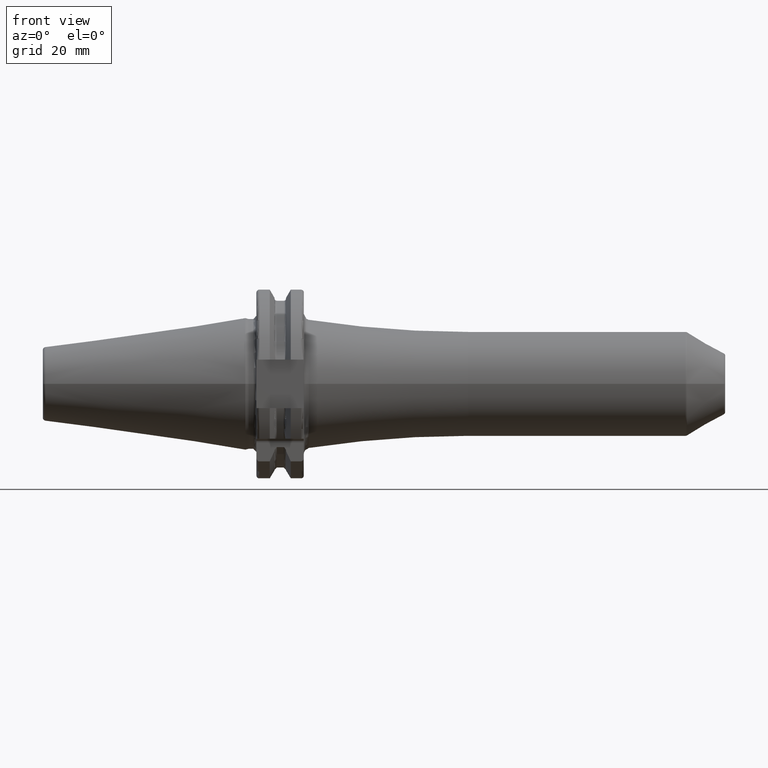
[diagram: clean part render]
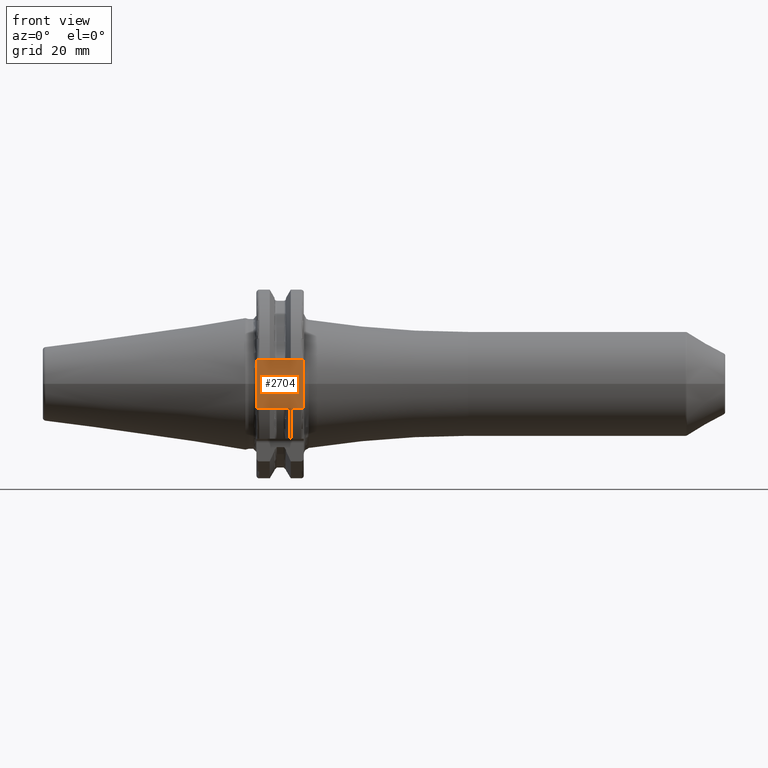
[diagram: same view with one face highlighted and labeled with its STEP entity id]
A machine part, front view. The second image highlights one B-rep face of the part: STEP entity #2704.
In plain terms, the highlighted planar face has unit normal (0, 1, 0).
Its self-contained STEP definition (entity closure, byte-faithful):
#151=DIRECTION('',(0.E0,0.E0,1.E0));
#152=VECTOR('',#151,1.62E1);
#153=CARTESIAN_POINT('',(1.905E1,-2.485E1,-8.1E0));
#154=LINE('',#153,#152);
#507=DIRECTION('',(-1.E0,0.E0,0.E0));
#508=VECTOR('',#507,1.585E1);
#509=CARTESIAN_POINT('',(1.905E1,-2.485E1,8.1E0));
#510=LINE('',#509,#508);
#732=DIRECTION('',(0.E0,0.E0,1.E0));
#733=VECTOR('',#732,1.62E1);
#734=CARTESIAN_POINT('',(3.2E0,-2.485E1,-8.1E0));
#735=LINE('',#734,#733);
#961=DIRECTION('',(-1.E0,0.E0,0.E0));
#962=VECTOR('',#961,1.585E1);
#963=CARTESIAN_POINT('',(1.905E1,-2.485E1,-8.1E0));
#964=LINE('',#963,#962);
#1533=CARTESIAN_POINT('',(1.905E1,-2.485E1,-8.1E0));
#1535=VERTEX_POINT('',#1533);
#1536=CARTESIAN_POINT('',(1.905E1,-2.485E1,8.1E0));
#1537=VERTEX_POINT('',#1536);
#1561=CARTESIAN_POINT('',(3.2E0,-2.485E1,-8.1E0));
#1563=VERTEX_POINT('',#1561);
#1564=CARTESIAN_POINT('',(3.2E0,-2.485E1,8.1E0));
#1565=VERTEX_POINT('',#1564);
#2693=CARTESIAN_POINT('',(1.905E1,-2.485E1,-8.1E0));
#2694=DIRECTION('',(0.E0,1.E0,0.E0));
#2695=DIRECTION('',(0.E0,0.E0,1.E0));
#2696=AXIS2_PLACEMENT_3D('',#2693,#2694,#2695);
#2697=PLANE('',#2696);
#2698=ORIENTED_EDGE('',*,*,#1852,.F.);
#2699=ORIENTED_EDGE('',*,*,#2652,.T.);
#2700=ORIENTED_EDGE('',*,*,#2448,.T.);
#2701=ORIENTED_EDGE('',*,*,#2279,.F.);
#2702=EDGE_LOOP('',(#2698,#2699,#2700,#2701));
#2703=FACE_OUTER_BOUND('',#2702,.F.);
#2704=ADVANCED_FACE('',(#2703),#2697,.F.);
#1852=EDGE_CURVE('',#1535,#1537,#154,.T.);
#2279=EDGE_CURVE('',#1537,#1565,#510,.T.);
#2448=EDGE_CURVE('',#1563,#1565,#735,.T.);
#2652=EDGE_CURVE('',#1535,#1563,#964,.T.);